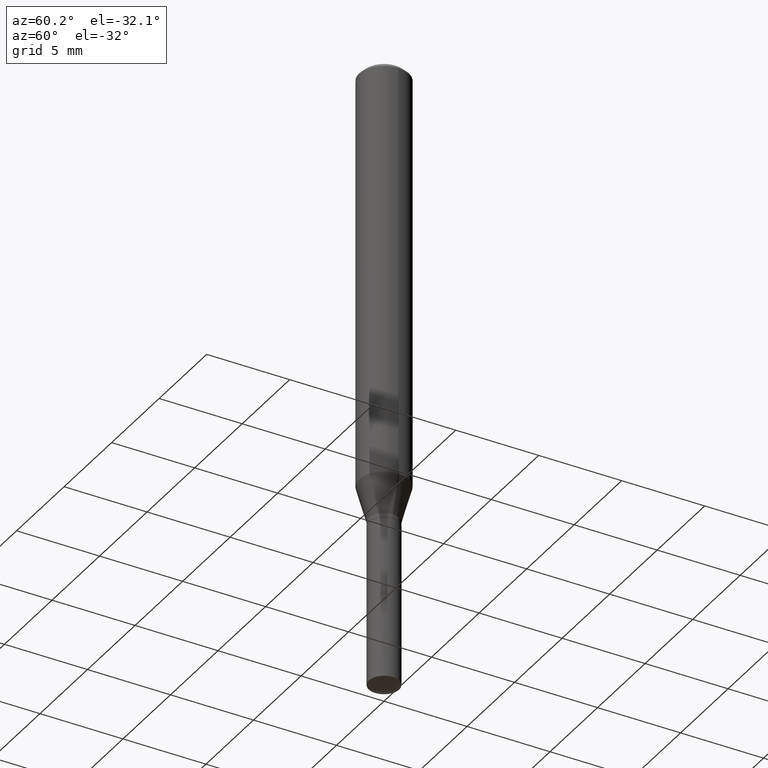
[diagram: clean part render]
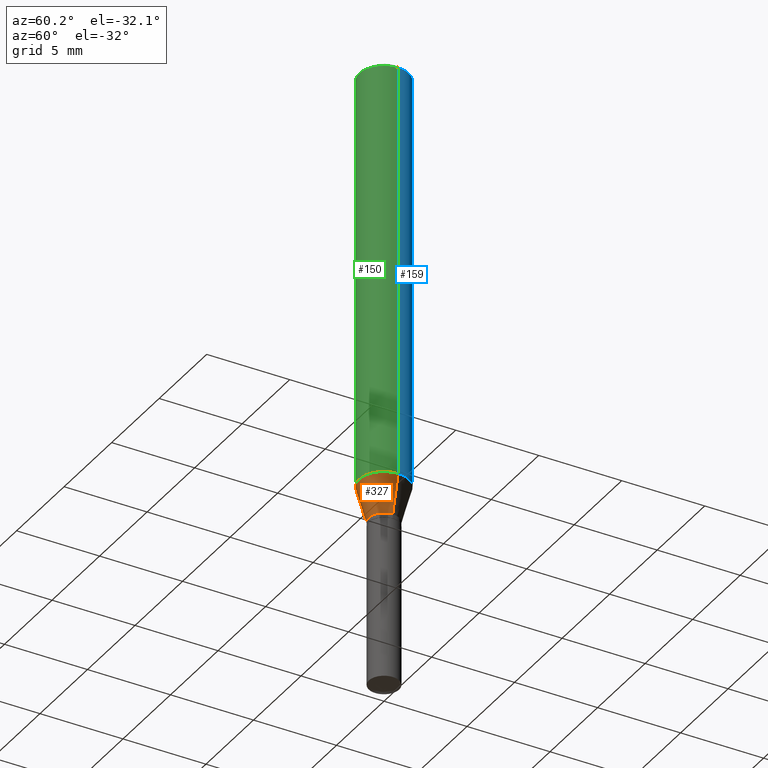
[diagram: same view with three faces highlighted in distinct colors, each labeled with its STEP entity id]
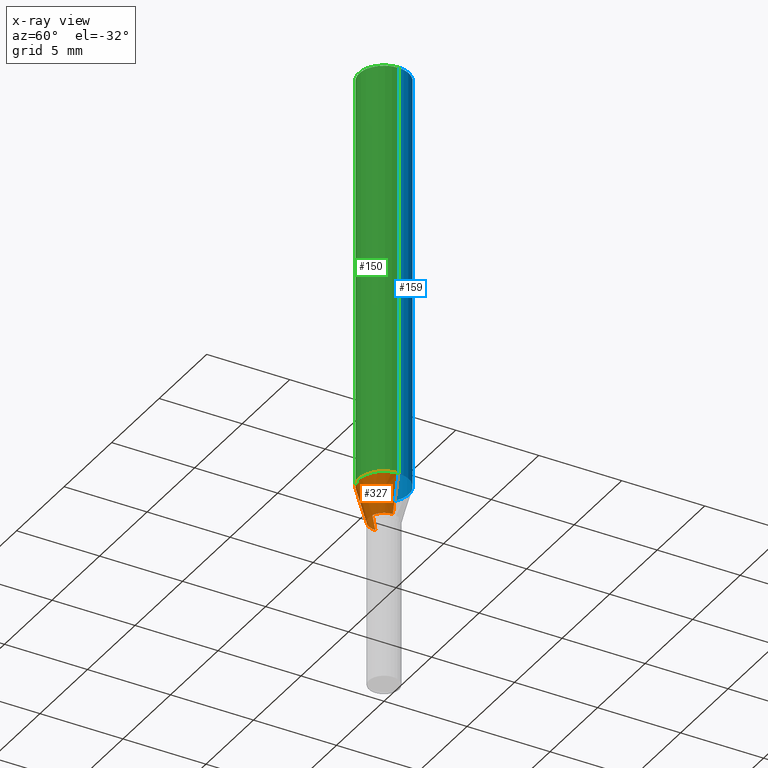
[diagram: x-ray of the same camera — body ghosted, the three highlighted faces saturated]
A machine part, auxiliary view with three faces highlighted in distinct colors.
The next image is the same camera in x-ray (body ghosted, the three faces saturated) — at least one of them is partly hidden behind the body in this view.
Their STEP definitions:

[orange] entity #327 — the highlighted conical surface has half-angle 15 deg.
#2 = EDGE_CURVE ( 'NONE', #300, #488, #464, .T. ) ;
#20 = VERTEX_POINT ( 'NONE', #134 ) ;
#98 = DIRECTION ( 'NONE',  ( -0.2588190451025212391, 5.211531920934549464E-15, 0.9659258262890679791 ) ) ;
#113 = VECTOR ( 'NONE', #98, 39.37007874015748854 ) ;
#128 = ORIENTED_EDGE ( 'NONE', *, *, #395, .T. ) ;
#131 = CARTESIAN_POINT ( 'NONE',  ( 0.03599999999999999728, -4.035104983301021910E-15, -1.083699999999999886 ) ) ;
#134 = CARTESIAN_POINT ( 'NONE',  ( -0.03599999999999999728, -3.545904070925723094E-15, -1.083699999999999886 ) ) ;
#137 = DIRECTION ( 'NONE',  ( -2.445468806185136597E-29, 3.491481338843145583E-15, 1.000000000000000000 ) ) ;
#142 = VECTOR ( 'NONE', #292, 39.37007874015748854 ) ;
#165 = CARTESIAN_POINT ( 'NONE',  ( -0.03599999999999999728, -3.527922942030680819E-15, -1.083699999999999886 ) ) ;
#175 = EDGE_CURVE ( 'NONE', #20, #486, #218, .T. ) ;
#176 = CARTESIAN_POINT ( 'NONE',  ( -0.05905000000000011628, -3.063792449894915431E-15, -0.9976762288855370864 ) ) ;
#198 = ORIENTED_EDGE ( 'NONE', *, *, #370, .F. ) ;
#216 = CARTESIAN_POINT ( 'NONE',  ( 2.439786096412003375E-29, -3.483367935361255318E-15, -0.9976762288855370864 ) ) ;
#218 = CIRCLE ( 'NONE', #452, 0.03599999999999999728 ) ;
#265 = DIRECTION ( 'NONE',  ( -2.445468806185136597E-29, 3.491481338843145583E-15, 1.000000000000000000 ) ) ;
#283 = DIRECTION ( 'NONE',  ( 1.000000000000000000, -6.982962677686265133E-15, 0.000000000000000000 ) ) ;
#292 = DIRECTION ( 'NONE',  ( 0.2588190451025212391, 1.565188264969622362E-15, 0.9659258262890679791 ) ) ;
#299 = LINE ( 'NONE', #165, #113 ) ;
#300 = VERTEX_POINT ( 'NONE', #176 ) ;
#307 = EDGE_LOOP ( 'NONE', ( #198, #358, #128, #456 ) ) ;
#327 = ADVANCED_FACE ( 'NONE', ( #335 ), #352, .T. ) ;
#329 = LINE ( 'NONE', #131, #142 ) ;
#335 = FACE_OUTER_BOUND ( 'NONE', #307, .T. ) ;
#352 = CONICAL_SURFACE ( 'NONE', #360, 0.03599999999999999728, 0.2617993877991499629 ) ;
#358 = ORIENTED_EDGE ( 'NONE', *, *, #175, .T. ) ;
#360 = AXIS2_PLACEMENT_3D ( 'NONE', #433, #265, #391 ) ;
#370 = EDGE_CURVE ( 'NONE', #20, #300, #299, .T. ) ;
#379 = AXIS2_PLACEMENT_3D ( 'NONE', #216, #137, #451 ) ;
#391 = DIRECTION ( 'NONE',  ( 1.000000000000000000, -6.982962677686265133E-15, 0.000000000000000000 ) ) ;
#395 = EDGE_CURVE ( 'NONE', #486, #488, #329, .T. ) ;
#417 = CARTESIAN_POINT ( 'NONE',  ( 0.05905000000000011628, -3.895711881478630633E-15, -0.9976762288855370864 ) ) ;
#429 = DIRECTION ( 'NONE',  ( -2.445468806185136597E-29, 3.491481338843145583E-15, 1.000000000000000000 ) ) ;
#433 = CARTESIAN_POINT ( 'NONE',  ( 2.650154545262832776E-29, -3.783718326904316719E-15, -1.083699999999999886 ) ) ;
#451 = DIRECTION ( 'NONE',  ( 1.000000000000000000, -6.982962677686266711E-15, 0.000000000000000000 ) ) ;
#452 = AXIS2_PLACEMENT_3D ( 'NONE', #459, #429, #283 ) ;
#453 = CARTESIAN_POINT ( 'NONE',  ( 0.03599999999999999728, -4.035104983301021910E-15, -1.083699999999999886 ) ) ;
#456 = ORIENTED_EDGE ( 'NONE', *, *, #2, .F. ) ;
#459 = CARTESIAN_POINT ( 'NONE',  ( 2.650154545262832776E-29, -3.783718326904316719E-15, -1.083699999999999886 ) ) ;
#464 = CIRCLE ( 'NONE', #379, 0.05905000000000011628 ) ;
#486 = VERTEX_POINT ( 'NONE', #453 ) ;
#488 = VERTEX_POINT ( 'NONE', #417 ) ;

[blue] entity #159 — the highlighted cylindrical surface (edge-blend (fillet) strip) has radius 1.4999 mm, axis along (-0, 0, 1).
#16 = EDGE_CURVE ( 'NONE', #300, #262, #110, .T. ) ;
#28 = CARTESIAN_POINT ( 'NONE',  ( 2.888098660104663766E-31, -4.123439461173779647E-17, -0.01181000000000007044 ) ) ;
#43 = FACE_OUTER_BOUND ( 'NONE', #100, .T. ) ;
#46 = EDGE_CURVE ( 'NONE', #319, #262, #301, .T. ) ;
#64 = ORIENTED_EDGE ( 'NONE', *, *, #46, .F. ) ;
#67 = DIRECTION ( 'NONE',  ( 1.000000000000000000, -6.982962677686266711E-15, 0.000000000000000000 ) ) ;
#70 = DIRECTION ( 'NONE',  ( -2.445468806185136597E-29, 3.491481338843145583E-15, 1.000000000000000000 ) ) ;
#71 = ORIENTED_EDGE ( 'NONE', *, *, #184, .F. ) ;
#81 = DIRECTION ( 'NONE',  ( -2.445468806185136597E-29, 3.491481338843145583E-15, 1.000000000000000000 ) ) ;
#100 = EDGE_LOOP ( 'NONE', ( #209, #221, #64, #71 ) ) ;
#110 = LINE ( 'NONE', #334, #386 ) ;
#159 = ADVANCED_FACE ( 'NONE', ( #43 ), #311, .T. ) ;
#169 = AXIS2_PLACEMENT_3D ( 'NONE', #28, #413, #67 ) ;
#176 = CARTESIAN_POINT ( 'NONE',  ( -0.05905000000000011628, -3.063792449894915431E-15, -0.9976762288855370864 ) ) ;
#184 = EDGE_CURVE ( 'NONE', #488, #319, #238, .T. ) ;
#186 = CARTESIAN_POINT ( 'NONE',  ( 2.439786096412003375E-29, -3.483367935361255318E-15, -0.9976762288855370864 ) ) ;
#199 = DIRECTION ( 'NONE',  ( -2.445468806185136877E-29, 3.491481338843145188E-15, 1.000000000000000000 ) ) ;
#209 = ORIENTED_EDGE ( 'NONE', *, *, #455, .T. ) ;
#221 = ORIENTED_EDGE ( 'NONE', *, *, #16, .T. ) ;
#236 = CARTESIAN_POINT ( 'NONE',  ( 0.000000000000000000, 0.000000000000000000, 0.000000000000000000 ) ) ;
#238 = LINE ( 'NONE', #384, #284 ) ;
#251 = AXIS2_PLACEMENT_3D ( 'NONE', #236, #81, #351 ) ;
#262 = VERTEX_POINT ( 'NONE', #357 ) ;
#284 = VECTOR ( 'NONE', #199, 39.37007874015748143 ) ;
#287 = CARTESIAN_POINT ( 'NONE',  ( 0.05904999999999999832, -4.535783407291118600E-16, -0.01181000000000007044 ) ) ;
#291 = AXIS2_PLACEMENT_3D ( 'NONE', #186, #70, #420 ) ;
#300 = VERTEX_POINT ( 'NONE', #176 ) ;
#301 = CIRCLE ( 'NONE', #169, 0.05904999999999999832 ) ;
#311 = CYLINDRICAL_SURFACE ( 'NONE', #251, 0.05905000000000006077 ) ;
#319 = VERTEX_POINT ( 'NONE', #287 ) ;
#334 = CARTESIAN_POINT ( 'NONE',  ( -0.05905000000000006077, 4.195754854663395916E-16, -2.904631170795524694E-30 ) ) ;
#351 = DIRECTION ( 'NONE',  ( 1.000000000000000000, -6.982962677686266711E-15, 4.876176775795935793E-29 ) ) ;
#357 = CARTESIAN_POINT ( 'NONE',  ( -0.05904999999999999832, -1.342725679520156242E-15, -0.01181000000000007044 ) ) ;
#384 = CARTESIAN_POINT ( 'NONE',  ( 0.05905000000000006077, -4.123439461173744764E-16, 2.879382386107503023E-30 ) ) ;
#386 = VECTOR ( 'NONE', #402, 39.37007874015748143 ) ;
#402 = DIRECTION ( 'NONE',  ( -2.445468806185136877E-29, 3.491481338843145188E-15, 1.000000000000000000 ) ) ;
#413 = DIRECTION ( 'NONE',  ( -2.445468806185136597E-29, 3.491481338843145583E-15, 1.000000000000000000 ) ) ;
#417 = CARTESIAN_POINT ( 'NONE',  ( 0.05905000000000011628, -3.895711881478630633E-15, -0.9976762288855370864 ) ) ;
#420 = DIRECTION ( 'NONE',  ( 1.000000000000000000, -6.982962677686266711E-15, 0.000000000000000000 ) ) ;
#455 = EDGE_CURVE ( 'NONE', #488, #300, #466, .T. ) ;
#466 = CIRCLE ( 'NONE', #291, 0.05905000000000011628 ) ;
#488 = VERTEX_POINT ( 'NONE', #417 ) ;

[green] entity #150 — the highlighted cylindrical surface (edge-blend (fillet) strip) has radius 1.4999 mm, axis along (-0, 0, 1).
#1 = ORIENTED_EDGE ( 'NONE', *, *, #229, .F. ) ;
#2 = EDGE_CURVE ( 'NONE', #300, #488, #464, .T. ) ;
#4 = FACE_OUTER_BOUND ( 'NONE', #24, .T. ) ;
#6 = CARTESIAN_POINT ( 'NONE',  ( 2.888098660104663766E-31, -4.123439461173779647E-17, -0.01181000000000007044 ) ) ;
#16 = EDGE_CURVE ( 'NONE', #300, #262, #110, .T. ) ;
#22 = CIRCLE ( 'NONE', #85, 0.05904999999999999832 ) ;
#24 = EDGE_LOOP ( 'NONE', ( #270, #423, #267, #1 ) ) ;
#85 = AXIS2_PLACEMENT_3D ( 'NONE', #6, #156, #122 ) ;
#110 = LINE ( 'NONE', #334, #386 ) ;
#119 = CARTESIAN_POINT ( 'NONE',  ( 0.000000000000000000, 0.000000000000000000, 0.000000000000000000 ) ) ;
#122 = DIRECTION ( 'NONE',  ( 1.000000000000000000, -6.982962677686266711E-15, 0.000000000000000000 ) ) ;
#137 = DIRECTION ( 'NONE',  ( -2.445468806185136597E-29, 3.491481338843145583E-15, 1.000000000000000000 ) ) ;
#150 = ADVANCED_FACE ( 'NONE', ( #4 ), #193, .T. ) ;
#153 = DIRECTION ( 'NONE',  ( -2.445468806185136597E-29, 3.491481338843145583E-15, 1.000000000000000000 ) ) ;
#156 = DIRECTION ( 'NONE',  ( -2.445468806185136597E-29, 3.491481338843145583E-15, 1.000000000000000000 ) ) ;
#176 = CARTESIAN_POINT ( 'NONE',  ( -0.05905000000000011628, -3.063792449894915431E-15, -0.9976762288855370864 ) ) ;
#184 = EDGE_CURVE ( 'NONE', #488, #319, #238, .T. ) ;
#193 = CYLINDRICAL_SURFACE ( 'NONE', #457, 0.05905000000000006077 ) ;
#194 = DIRECTION ( 'NONE',  ( 1.000000000000000000, -6.982962677686266711E-15, 4.876176775795935793E-29 ) ) ;
#199 = DIRECTION ( 'NONE',  ( -2.445468806185136877E-29, 3.491481338843145188E-15, 1.000000000000000000 ) ) ;
#216 = CARTESIAN_POINT ( 'NONE',  ( 2.439786096412003375E-29, -3.483367935361255318E-15, -0.9976762288855370864 ) ) ;
#229 = EDGE_CURVE ( 'NONE', #262, #319, #22, .T. ) ;
#238 = LINE ( 'NONE', #384, #284 ) ;
#262 = VERTEX_POINT ( 'NONE', #357 ) ;
#267 = ORIENTED_EDGE ( 'NONE', *, *, #184, .T. ) ;
#270 = ORIENTED_EDGE ( 'NONE', *, *, #16, .F. ) ;
#284 = VECTOR ( 'NONE', #199, 39.37007874015748143 ) ;
#287 = CARTESIAN_POINT ( 'NONE',  ( 0.05904999999999999832, -4.535783407291118600E-16, -0.01181000000000007044 ) ) ;
#300 = VERTEX_POINT ( 'NONE', #176 ) ;
#319 = VERTEX_POINT ( 'NONE', #287 ) ;
#334 = CARTESIAN_POINT ( 'NONE',  ( -0.05905000000000006077, 4.195754854663395916E-16, -2.904631170795524694E-30 ) ) ;
#357 = CARTESIAN_POINT ( 'NONE',  ( -0.05904999999999999832, -1.342725679520156242E-15, -0.01181000000000007044 ) ) ;
#379 = AXIS2_PLACEMENT_3D ( 'NONE', #216, #137, #451 ) ;
#384 = CARTESIAN_POINT ( 'NONE',  ( 0.05905000000000006077, -4.123439461173744764E-16, 2.879382386107503023E-30 ) ) ;
#386 = VECTOR ( 'NONE', #402, 39.37007874015748143 ) ;
#402 = DIRECTION ( 'NONE',  ( -2.445468806185136877E-29, 3.491481338843145188E-15, 1.000000000000000000 ) ) ;
#417 = CARTESIAN_POINT ( 'NONE',  ( 0.05905000000000011628, -3.895711881478630633E-15, -0.9976762288855370864 ) ) ;
#423 = ORIENTED_EDGE ( 'NONE', *, *, #2, .T. ) ;
#451 = DIRECTION ( 'NONE',  ( 1.000000000000000000, -6.982962677686266711E-15, 0.000000000000000000 ) ) ;
#457 = AXIS2_PLACEMENT_3D ( 'NONE', #119, #153, #194 ) ;
#464 = CIRCLE ( 'NONE', #379, 0.05905000000000011628 ) ;
#488 = VERTEX_POINT ( 'NONE', #417 ) ;